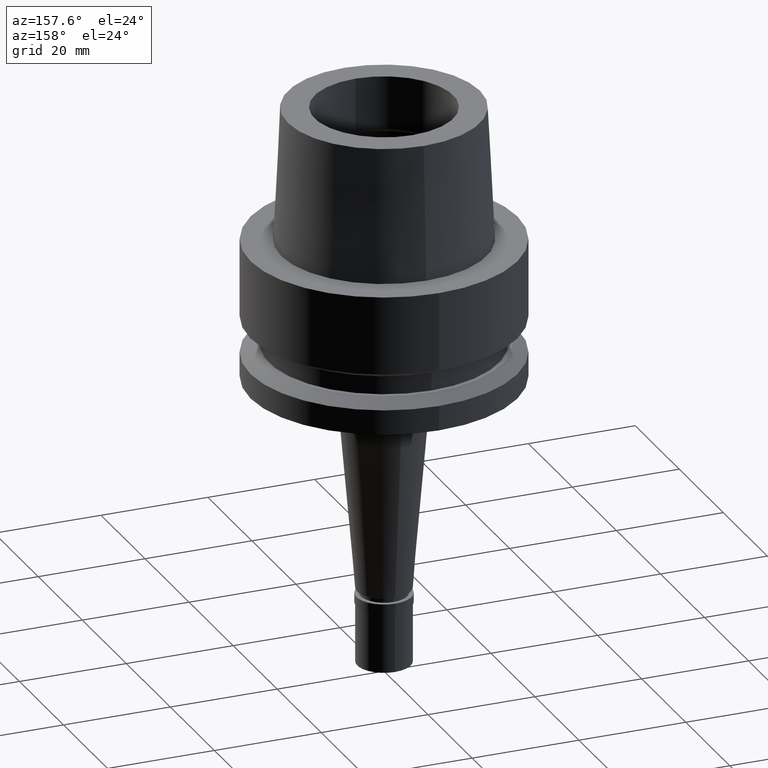
[diagram: clean part render]
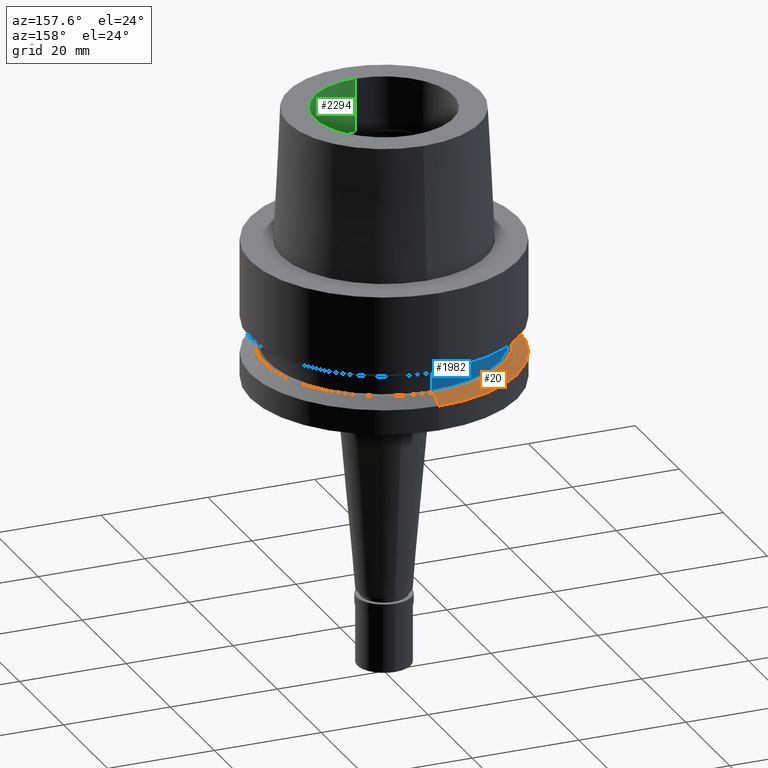
[diagram: same view with three faces highlighted in distinct colors, each labeled with its STEP entity id]
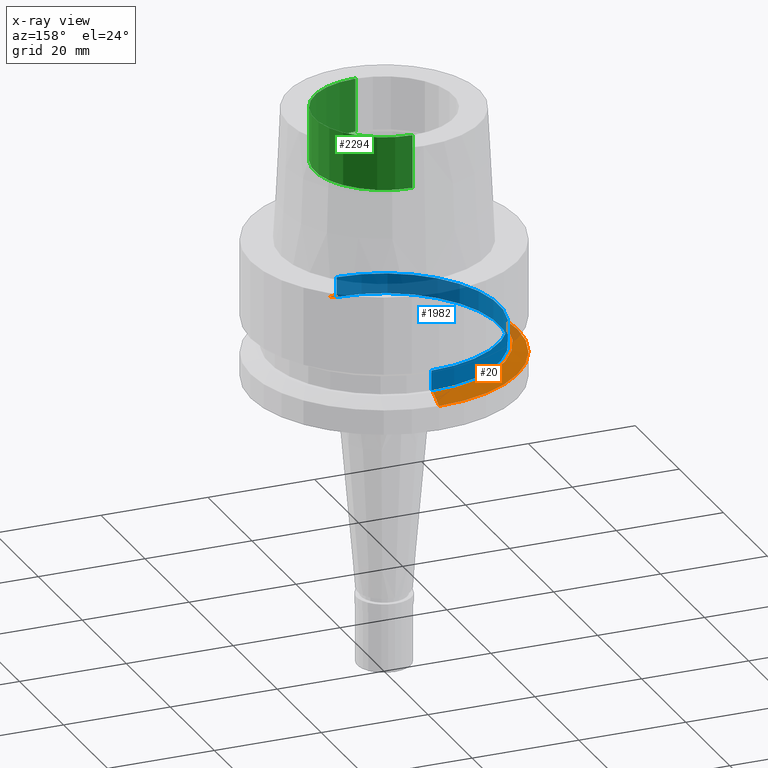
[diagram: x-ray of the same camera — body ghosted, the three highlighted faces saturated]
A machine part, auxiliary view with three faces highlighted in distinct colors.
The next image is the same camera in x-ray (body ghosted, the three faces saturated) — at least one of them is partly hidden behind the body in this view.
Their STEP definitions:

[orange] entity #20 — the highlighted conical surface has half-angle 60.97 deg.
#20 = ADVANCED_FACE ( 'NONE', ( #1178 ), #1586, .T. ) ;
#51 = ORIENTED_EDGE ( 'NONE', *, *, #885, .F. ) ;
#173 = CARTESIAN_POINT ( 'NONE',  ( 0.0000000000000000000, -25.00000000000000000, -21.38164558085999900 ) ) ;
#305 = VECTOR ( 'NONE', #2260, 1000.000000000000114 ) ;
#344 = CIRCLE ( 'NONE', #1871, 25.00000000000000000 ) ;
#383 = ORIENTED_EDGE ( 'NONE', *, *, #1565, .F. ) ;
#394 = EDGE_CURVE ( 'NONE', #2373, #2080, #1612, .T. ) ;
#523 = ORIENTED_EDGE ( 'NONE', *, *, #1793, .T. ) ;
#616 = LINE ( 'NONE', #1433, #305 ) ;
#664 = CIRCLE ( 'NONE', #1243, 22.28529260494000042 ) ;
#701 = CARTESIAN_POINT ( 'NONE',  ( 0.0000000000000000000, 0.0000000000000000000, -21.38164558085999900 ) ) ;
#707 = DIRECTION ( 'NONE',  ( 0.0000000000000000000, 0.0000000000000000000, -1.000000000000000000 ) ) ;
#802 = DIRECTION ( 'NONE',  ( 0.0000000000000000000, 0.8743657415364817220, -0.4852675035764898448 ) ) ;
#885 = EDGE_CURVE ( 'NONE', #2695, #2080, #344, .T. ) ;
#917 = DIRECTION ( 'NONE',  ( 0.0000000000000000000, 0.0000000000000000000, -1.000000000000000000 ) ) ;
#982 = CARTESIAN_POINT ( 'NONE',  ( 0.0000000000000000000, 0.0000000000000000000, -20.62832279043000128 ) ) ;
#1138 = CARTESIAN_POINT ( 'NONE',  ( 0.0000000000000000000, 25.00000000000000000, -21.38164558085999900 ) ) ;
#1178 = FACE_OUTER_BOUND ( 'NONE', #1215, .T. ) ;
#1205 = VECTOR ( 'NONE', #802, 1000.000000000000114 ) ;
#1215 = EDGE_LOOP ( 'NONE', ( #51, #383, #523, #2519 ) ) ;
#1243 = AXIS2_PLACEMENT_3D ( 'NONE', #1741, #707, #2102 ) ;
#1374 = DIRECTION ( 'NONE',  ( 0.0000000000000000000, -1.000000000000000000, 0.0000000000000000000 ) ) ;
#1433 = CARTESIAN_POINT ( 'NONE',  ( 0.0000000000000000000, -22.28529260494000042, -19.87500000000000000 ) ) ;
#1565 = EDGE_CURVE ( 'NONE', #2137, #2695, #616, .T. ) ;
#1586 = CONICAL_SURFACE ( 'NONE', #1726, 23.64264630247000198, 1.064127244940741290 ) ;
#1590 = DIRECTION ( 'NONE',  ( 0.0000000000000000000, 0.0000000000000000000, -1.000000000000000000 ) ) ;
#1612 = LINE ( 'NONE', #2426, #1205 ) ;
#1726 = AXIS2_PLACEMENT_3D ( 'NONE', #982, #1590, #1374 ) ;
#1741 = CARTESIAN_POINT ( 'NONE',  ( 0.0000000000000000000, 0.0000000000000000000, -19.87500000000000000 ) ) ;
#1793 = EDGE_CURVE ( 'NONE', #2137, #2373, #664, .T. ) ;
#1871 = AXIS2_PLACEMENT_3D ( 'NONE', #701, #917, #2135 ) ;
#2080 = VERTEX_POINT ( 'NONE', #1138 ) ;
#2102 = DIRECTION ( 'NONE',  ( 0.0000000000000000000, -1.000000000000000000, 0.0000000000000000000 ) ) ;
#2135 = DIRECTION ( 'NONE',  ( 0.0000000000000000000, -1.000000000000000000, 0.0000000000000000000 ) ) ;
#2137 = VERTEX_POINT ( 'NONE', #2158 ) ;
#2158 = CARTESIAN_POINT ( 'NONE',  ( 0.0000000000000000000, -22.28529260494000042, -19.87500000000000000 ) ) ;
#2260 = DIRECTION ( 'NONE',  ( 0.0000000000000000000, -0.8743657415364817220, -0.4852675035764898448 ) ) ;
#2373 = VERTEX_POINT ( 'NONE', #2518 ) ;
#2426 = CARTESIAN_POINT ( 'NONE',  ( 0.0000000000000000000, 22.28529260494000042, -19.87500000000000000 ) ) ;
#2518 = CARTESIAN_POINT ( 'NONE',  ( 0.0000000000000000000, 22.28529260494000042, -19.87500000000000000 ) ) ;
#2519 = ORIENTED_EDGE ( 'NONE', *, *, #394, .T. ) ;
#2695 = VERTEX_POINT ( 'NONE', #173 ) ;

[blue] entity #1982 — the highlighted cylindrical surface (partial cylindrical patch) has radius 21.5 mm, axis along (0, 0, -1).
#22 = EDGE_CURVE ( 'NONE', #1426, #307, #2403, .T. ) ;
#38 = CARTESIAN_POINT ( 'NONE',  ( 0.0000000000000000000, -21.50000000000000000, -19.87500000000000000 ) ) ;
#50 = VECTOR ( 'NONE', #1738, 1000.000000000000000 ) ;
#63 = LINE ( 'NONE', #1556, #50 ) ;
#251 = VECTOR ( 'NONE', #431, 1000.000000000000000 ) ;
#262 = AXIS2_PLACEMENT_3D ( 'NONE', #341, #951, #1187 ) ;
#294 = ORIENTED_EDGE ( 'NONE', *, *, #1669, .T. ) ;
#307 = VERTEX_POINT ( 'NONE', #489 ) ;
#336 = LINE ( 'NONE', #756, #251 ) ;
#341 = CARTESIAN_POINT ( 'NONE',  ( 0.0000000000000000000, 0.0000000000000000000, 30.06500000000000128 ) ) ;
#431 = DIRECTION ( 'NONE',  ( 0.0000000000000000000, 0.0000000000000000000, -1.000000000000000000 ) ) ;
#489 = CARTESIAN_POINT ( 'NONE',  ( 0.0000000000000000000, 21.50000000000000000, -16.12500000000000000 ) ) ;
#528 = ORIENTED_EDGE ( 'NONE', *, *, #22, .T. ) ;
#628 = DIRECTION ( 'NONE',  ( 0.0000000000000000000, 1.000000000000000000, 0.0000000000000000000 ) ) ;
#638 = AXIS2_PLACEMENT_3D ( 'NONE', #1620, #1382, #1163 ) ;
#730 = CARTESIAN_POINT ( 'NONE',  ( 0.0000000000000000000, 21.50000000000000000, -19.87500000000000000 ) ) ;
#756 = CARTESIAN_POINT ( 'NONE',  ( 0.0000000000000000000, 21.50000000000000000, -16.12500000000000000 ) ) ;
#761 = FACE_OUTER_BOUND ( 'NONE', #1004, .T. ) ;
#780 = CARTESIAN_POINT ( 'NONE',  ( 0.0000000000000000000, -21.50000000000000000, -16.12500000000000000 ) ) ;
#886 = VERTEX_POINT ( 'NONE', #730 ) ;
#951 = DIRECTION ( 'NONE',  ( 0.0000000000000000000, 0.0000000000000000000, -1.000000000000000000 ) ) ;
#1004 = EDGE_LOOP ( 'NONE', ( #294, #1894, #528, #1247 ) ) ;
#1113 = EDGE_CURVE ( 'NONE', #307, #886, #336, .T. ) ;
#1144 = CIRCLE ( 'NONE', #2656, 21.50000000000000000 ) ;
#1163 = DIRECTION ( 'NONE',  ( 0.0000000000000000000, -1.000000000000000000, 0.0000000000000000000 ) ) ;
#1187 = DIRECTION ( 'NONE',  ( 0.0000000000000000000, -1.000000000000000000, 0.0000000000000000000 ) ) ;
#1226 = VERTEX_POINT ( 'NONE', #38 ) ;
#1247 = ORIENTED_EDGE ( 'NONE', *, *, #1113, .T. ) ;
#1382 = DIRECTION ( 'NONE',  ( 0.0000000000000000000, 0.0000000000000000000, -1.000000000000000000 ) ) ;
#1408 = DIRECTION ( 'NONE',  ( 0.0000000000000000000, 0.0000000000000000000, 1.000000000000000000 ) ) ;
#1426 = VERTEX_POINT ( 'NONE', #780 ) ;
#1556 = CARTESIAN_POINT ( 'NONE',  ( 0.0000000000000000000, -21.50000000000000000, -16.12500000000000000 ) ) ;
#1620 = CARTESIAN_POINT ( 'NONE',  ( 0.0000000000000000000, 0.0000000000000000000, -16.12500000000000000 ) ) ;
#1669 = EDGE_CURVE ( 'NONE', #886, #1226, #1144, .T. ) ;
#1738 = DIRECTION ( 'NONE',  ( 0.0000000000000000000, 0.0000000000000000000, -1.000000000000000000 ) ) ;
#1894 = ORIENTED_EDGE ( 'NONE', *, *, #2583, .F. ) ;
#1982 = ADVANCED_FACE ( 'NONE', ( #761 ), #2596, .T. ) ;
#2026 = CARTESIAN_POINT ( 'NONE',  ( 0.0000000000000000000, 0.0000000000000000000, -19.87500000000000000 ) ) ;
#2403 = CIRCLE ( 'NONE', #638, 21.50000000000000000 ) ;
#2583 = EDGE_CURVE ( 'NONE', #1426, #1226, #63, .T. ) ;
#2596 = CYLINDRICAL_SURFACE ( 'NONE', #262, 21.50000000000000000 ) ;
#2656 = AXIS2_PLACEMENT_3D ( 'NONE', #2026, #1408, #628 ) ;

[green] entity #2294 — the highlighted cylindrical surface (partial cylindrical patch) has radius 13 mm, axis along (0, 0, -1).
#184 = EDGE_LOOP ( 'NONE', ( #1583, #880, #2415, #1424 ) ) ;
#263 = AXIS2_PLACEMENT_3D ( 'NONE', #823, #1201, #1034 ) ;
#353 = FACE_OUTER_BOUND ( 'NONE', #184, .T. ) ;
#440 = CARTESIAN_POINT ( 'NONE',  ( 0.0000000000000000000, 13.00000000000000000, 25.00000000000000000 ) ) ;
#444 = AXIS2_PLACEMENT_3D ( 'NONE', #2467, #2053, #644 ) ;
#478 = EDGE_CURVE ( 'NONE', #2540, #497, #728, .T. ) ;
#497 = VERTEX_POINT ( 'NONE', #667 ) ;
#644 = DIRECTION ( 'NONE',  ( 0.0000000000000000000, -1.000000000000000000, 0.0000000000000000000 ) ) ;
#652 = CARTESIAN_POINT ( 'NONE',  ( 0.0000000000000000000, 13.00000000000000000, 14.99602540378000093 ) ) ;
#667 = CARTESIAN_POINT ( 'NONE',  ( 0.0000000000000000000, -13.00000000000000000, 25.00000000000000000 ) ) ;
#680 = EDGE_CURVE ( 'NONE', #1308, #1908, #2537, .T. ) ;
#728 = LINE ( 'NONE', #2149, #2674 ) ;
#763 = CARTESIAN_POINT ( 'NONE',  ( 0.0000000000000000000, 0.0000000000000000000, 14.99602540378000093 ) ) ;
#823 = CARTESIAN_POINT ( 'NONE',  ( 0.0000000000000000000, 0.0000000000000000000, 30.06500000000000128 ) ) ;
#880 = ORIENTED_EDGE ( 'NONE', *, *, #478, .T. ) ;
#898 = CARTESIAN_POINT ( 'NONE',  ( 0.0000000000000000000, 13.00000000000000000, 14.99602540378000093 ) ) ;
#965 = DIRECTION ( 'NONE',  ( 0.0000000000000000000, 0.0000000000000000000, -1.000000000000000000 ) ) ;
#1034 = DIRECTION ( 'NONE',  ( 0.0000000000000000000, -1.000000000000000000, 0.0000000000000000000 ) ) ;
#1168 = CARTESIAN_POINT ( 'NONE',  ( 0.0000000000000000000, -13.00000000000000000, 14.99602540378000093 ) ) ;
#1201 = DIRECTION ( 'NONE',  ( 0.0000000000000000000, 0.0000000000000000000, -1.000000000000000000 ) ) ;
#1308 = VERTEX_POINT ( 'NONE', #898 ) ;
#1409 = EDGE_CURVE ( 'NONE', #1308, #2540, #2181, .T. ) ;
#1424 = ORIENTED_EDGE ( 'NONE', *, *, #680, .F. ) ;
#1456 = VECTOR ( 'NONE', #1901, 1000.000000000000000 ) ;
#1583 = ORIENTED_EDGE ( 'NONE', *, *, #1409, .T. ) ;
#1610 = EDGE_CURVE ( 'NONE', #497, #1908, #1624, .T. ) ;
#1624 = CIRCLE ( 'NONE', #444, 13.00000000000000000 ) ;
#1901 = DIRECTION ( 'NONE',  ( 0.0000000000000000000, -9.659541928455000240E-14, 1.000000000000000000 ) ) ;
#1908 = VERTEX_POINT ( 'NONE', #440 ) ;
#1965 = AXIS2_PLACEMENT_3D ( 'NONE', #763, #965, #1985 ) ;
#1985 = DIRECTION ( 'NONE',  ( 0.0000000000000000000, 1.000000000000000000, 0.0000000000000000000 ) ) ;
#2053 = DIRECTION ( 'NONE',  ( 0.0000000000000000000, 0.0000000000000000000, 1.000000000000000000 ) ) ;
#2149 = CARTESIAN_POINT ( 'NONE',  ( 0.0000000000000000000, -13.00000000000000000, 14.99602540378000093 ) ) ;
#2181 = CIRCLE ( 'NONE', #1965, 13.00000000000000000 ) ;
#2294 = ADVANCED_FACE ( 'NONE', ( #353 ), #2442, .F. ) ;
#2415 = ORIENTED_EDGE ( 'NONE', *, *, #1610, .T. ) ;
#2442 = CYLINDRICAL_SURFACE ( 'NONE', #263, 13.00000000000000000 ) ;
#2467 = CARTESIAN_POINT ( 'NONE',  ( 0.0000000000000000000, 0.0000000000000000000, 25.00000000000000000 ) ) ;
#2537 = LINE ( 'NONE', #652, #1456 ) ;
#2540 = VERTEX_POINT ( 'NONE', #1168 ) ;
#2555 = DIRECTION ( 'NONE',  ( 0.0000000000000000000, 9.659541928455000240E-14, 1.000000000000000000 ) ) ;
#2674 = VECTOR ( 'NONE', #2555, 1000.000000000000000 ) ;